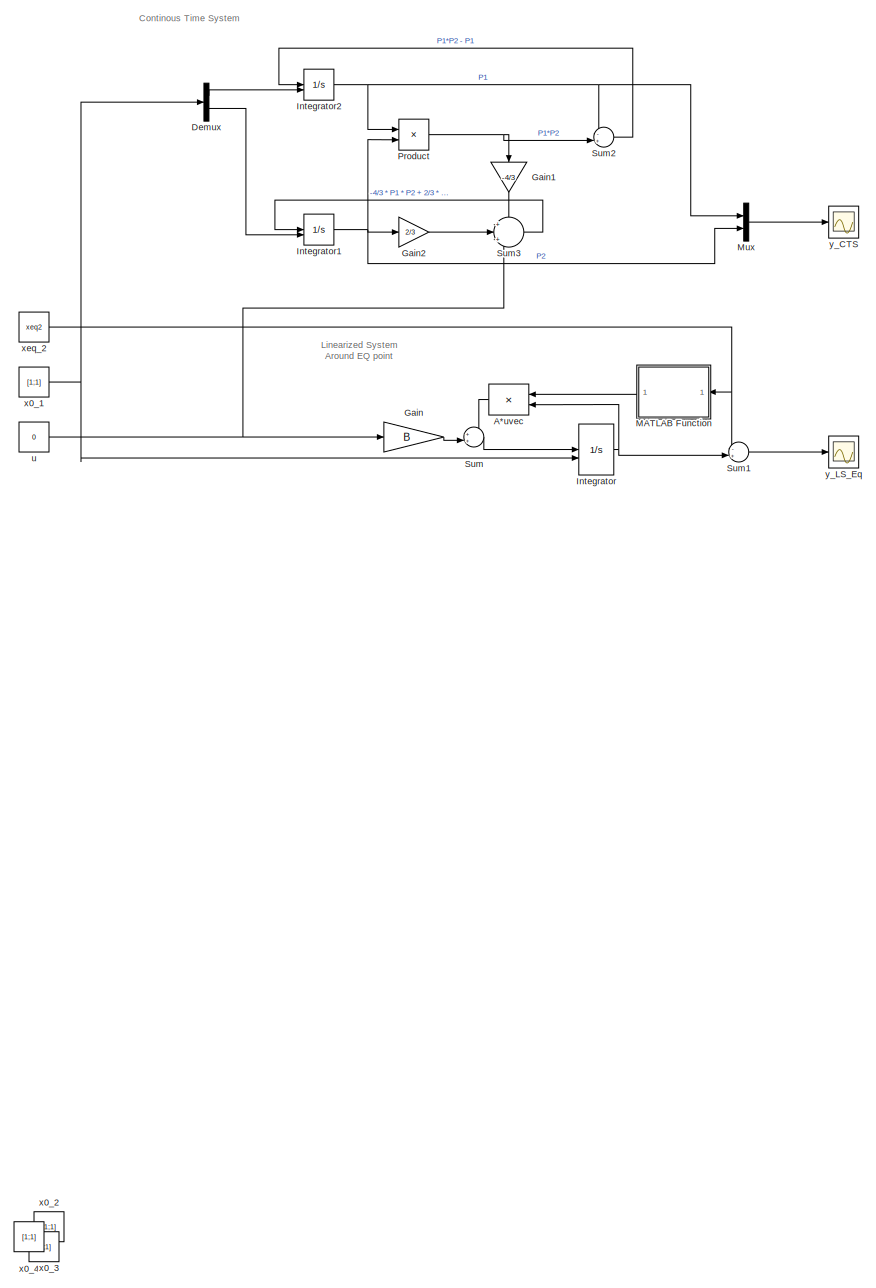
[diagram: root canvas - part 1/1, most of the canvas]
MODEL slx_e9ceacbffc56
KIND model
CONFIG AbsTol = auto
CONFIG EnableMultiTasking = off
CONFIG FixedStep = 0.01
CONFIG MaxStep = auto
CONFIG MinStep = auto
CONFIG RelTol = 1e-3
CONFIG SampleTimeConstraint = Unconstrained
CONFIG SolverName = FixedStepAuto
CONFIG StartTime = 0
CONFIG StopTime = 100
BLOCK [Product] A*uvec
  Multiplication = Matrix(*)
  NameLocation = top
BLOCK [Demux] Demux
  Outputs = 2
BLOCK [Gain] Gain
  Gain = B
  Multiplication = Matrix(K*u) (u vector)
BLOCK [Gain] Gain1
  Gain = -4/3
  NameLocation = left
BLOCK [Gain] Gain2
  Gain = 2/3
BLOCK [Integrator] Integrator
  InitialCondition = [0.5;0]
  InitialConditionSource = external
BLOCK [Integrator] Integrator1
  InitialConditionSource = external
BLOCK [Integrator] Integrator2
  InitialConditionSource = external
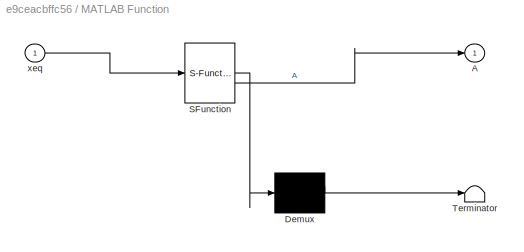
BLOCK [SubSystem] MATLAB Function
  ErrorFcn = Stateflow.Translate.translate
  NameLocation = top
  PermitHierarchicalResolution = ExplicitOnly
  SFBlockType = MATLAB Function
  TreatAsAtomicUnit = on
BLOCK [Demux] MATLAB Function/ Demux 
  Outputs = 1
BLOCK [S-Function] MATLAB Function/ SFunction 
  EnableBusSupport = on
  FunctionName = sf_sfun
  PortCounts = [1 2]
  SFcnIsStateOwnerBlock = off
  SFunctionDeploymentMode = off
  Tag = Stateflow S-Function 1
BLOCK [Terminator] MATLAB Function/ Terminator 
BLOCK [Outport] MATLAB Function/A
BLOCK [Inport] MATLAB Function/xeq
BLOCK [Mux] Mux
  DisplayOption = bar
  Inputs = 2
BLOCK [Product] Product
BLOCK [Sum] Sum
  Inputs = ++|
BLOCK [Sum] Sum1
  Inputs = -+|
BLOCK [Sum] Sum2
  Inputs = -+|
BLOCK [Sum] Sum3
  Inputs = +|+|+
BLOCK [Constant] u
  NameLocation = left
  Value = 0
BLOCK [Constant] x0_1
  NameLocation = left
  Value = [1;1]
BLOCK [Constant] x0_2
  NameLocation = left
  Value = [1;1]
BLOCK [Constant] x0_3
  NameLocation = left
  Value = [1;1]
BLOCK [Constant] x0_4
  NameLocation = left
  Value = [1;1]
BLOCK [Constant] xeq_2
  NameLocation = left
  Value = xeq2
BLOCK [Scope] y_CTS
  Floating = off
  NameLocation = top
  NumInputPorts = 1
  ScopeSpecificationString = Simulink.scopes.TimeScopeBlockCfg('CurrentConfiguration', extmgr.ConfigurationSet(extmgr.Configuration('Core','General UI',true),extmgr.Configuration('Core','Source UI',true),extmgr.Configuration('Sources','WiredSimulink',true,'DataLoggingVariableName','ScopeData1'),extmgr.Configuration('Visuals','Time Domain',true,'SerializedDisplays',{struct('MinYLimReal','0.00575','MaxYLimReal','1.98013','YLabe...<+1537ch>
BLOCK [Scope] y_LS_Eq
  Floating = off
  NameLocation = top
  NumInputPorts = 1
  ScopeSpecificationString = Simulink.scopes.TimeScopeBlockCfg('CurrentConfiguration', extmgr.ConfigurationSet(extmgr.Configuration('Core','General UI',true),extmgr.Configuration('Core','Source UI',true),extmgr.Configuration('Sources','WiredSimulink',true,'DataLoggingVariableName','ScopeData1'),extmgr.Configuration('Visuals','Time Domain',true,'SerializedDisplays',{struct('MinYLimReal','-3.39356','MaxYLimReal','1.39357','YLab...<+1492ch>
ANNOTATION (root): Continous Time System
ANNOTATION (root): Linearized System Around EQ point
LINE A*uvec:1 -> Sum:1
LINE Demux:1 -> Integrator2:2
LINE Demux:2 -> Integrator1:2
LINE Gain1:1 -> Sum3:1
LINE Gain2:1 -> Sum3:2
LINE Gain:1 -> Sum:2
NET Integrator1:1 -> Gain2:1, Mux:2, Product:2
NET Integrator2:1 -> Mux:1, Product:1, Sum2:1
NET Integrator:1 -> A*uvec:2, Sum1:2
LINE MATLAB Function:1 -> A*uvec:1
LINE Mux:1 -> y_CTS:1
NET Product:1 -> Gain1:1, Sum2:2
LINE Sum1:1 -> y_LS_Eq:1
LINE Sum2:1 -> Integrator2:1
LINE Sum3:1 -> Integrator1:1
LINE Sum:1 -> Integrator:1
NET u:1 -> Gain:1, Sum3:3
NET x0_1:1 -> Demux:1, Integrator:2
NET xeq_2:1 -> MATLAB Function:1, Sum1:1
note: NET lines group one-source signal fan-out (src -> all destinations, sorted); 1:1 wires keep LINE
CHART MATLAB Function states=1 transitions=1
  STATE_LABEL 'eML_blk_kernel()'
  STATE_LABEL 'SCRIPT:\nfunction A = fcn(xeq)\n    A = computeA(xeq(1), xeq(2));\nend'
CHART  states=0 transitions=0
